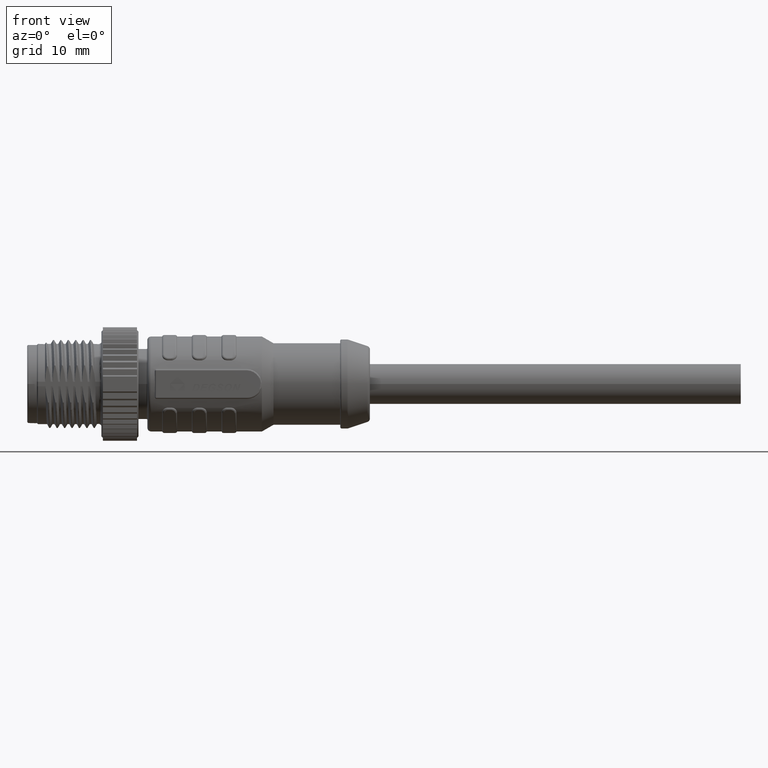
[diagram: clean part render]
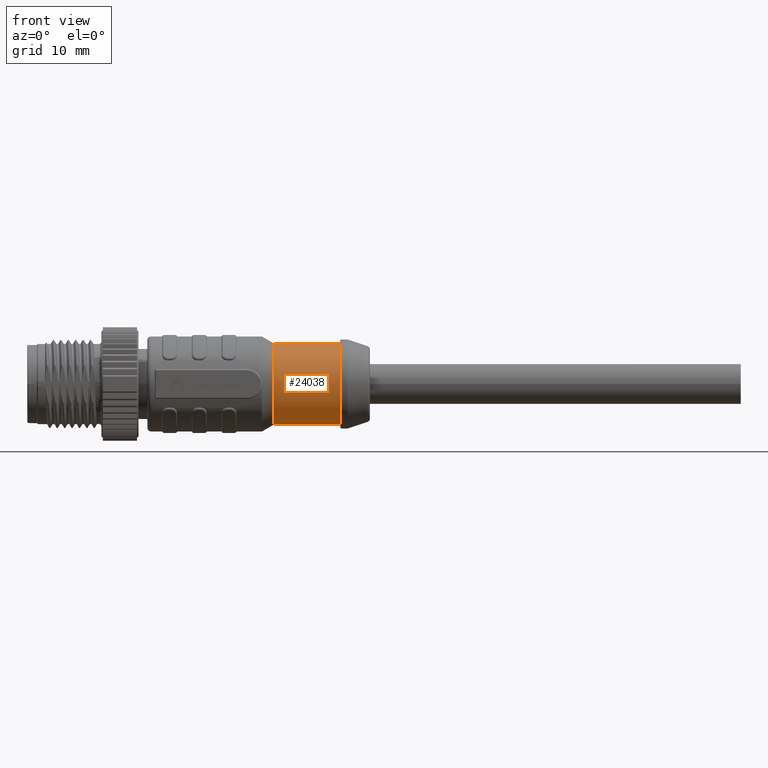
[diagram: same view with one face highlighted and labeled with its STEP entity id]
A machine part, front view. The second image highlights one B-rep face of the part: STEP entity #24038.
In plain terms, the highlighted cylindrical surface (partial cylindrical patch) has radius 5.5 mm, axis along (-1, 0, 0).
Its self-contained STEP definition (entity closure, byte-faithful):
#652=CARTESIAN_POINT('',(3.12E1,0.E0,0.E0));
#653=DIRECTION('',(1.E0,0.E0,0.E0));
#654=DIRECTION('',(0.E0,0.E0,1.E0));
#655=AXIS2_PLACEMENT_3D('',#652,#653,#654);
#6851=DIRECTION('',(-1.E0,0.E0,-9.602195581869E-14));
#6852=VECTOR('',#6851,9.E0);
#6853=CARTESIAN_POINT('',(4.02E1,0.E0,5.5E0));
#6854=LINE('',#6853,#6852);
#6855=DIRECTION('',(-1.E0,0.E0,9.602195581869E-14));
#6856=VECTOR('',#6855,9.E0);
#6857=CARTESIAN_POINT('',(4.02E1,0.E0,-5.5E0));
#6858=LINE('',#6857,#6856);
#6869=CARTESIAN_POINT('',(4.02E1,0.E0,0.E0));
#6870=DIRECTION('',(-1.E0,0.E0,0.E0));
#6871=DIRECTION('',(0.E0,0.E0,-1.E0));
#6872=AXIS2_PLACEMENT_3D('',#6869,#6870,#6871);
#10615=CARTESIAN_POINT('',(3.12E1,0.E0,5.499999999999E0));
#10616=VERTEX_POINT('',#10615);
#10617=CARTESIAN_POINT('',(3.12E1,0.E0,-5.499999999998E0));
#10618=VERTEX_POINT('',#10617);
#11884=CARTESIAN_POINT('',(4.02E1,0.E0,-5.5E0));
#11885=VERTEX_POINT('',#11884);
#11886=CARTESIAN_POINT('',(4.02E1,0.E0,5.5E0));
#11887=VERTEX_POINT('',#11886);
#24026=CARTESIAN_POINT('',(4.57E1,0.E0,0.E0));
#24027=DIRECTION('',(-1.E0,0.E0,0.E0));
#24028=DIRECTION('',(0.E0,0.E0,1.E0));
#24029=AXIS2_PLACEMENT_3D('',#24026,#24027,#24028);
#24030=CYLINDRICAL_SURFACE('',#24029,5.5E0);
#24031=ORIENTED_EDGE('',*,*,#24016,.T.);
#24032=ORIENTED_EDGE('',*,*,#13334,.F.);
#24033=ORIENTED_EDGE('',*,*,#24020,.F.);
#24035=ORIENTED_EDGE('',*,*,#24034,.F.);
#24036=EDGE_LOOP('',(#24031,#24032,#24033,#24035));
#24037=FACE_OUTER_BOUND('',#24036,.F.);
#24038=ADVANCED_FACE('',(#24037),#24030,.T.);
#656=CIRCLE('',#655,5.499999999998E0);
#6873=CIRCLE('',#6872,5.5E0);
#13334=EDGE_CURVE('',#10616,#10618,#656,.T.);
#24016=EDGE_CURVE('',#11885,#10618,#6858,.T.);
#24020=EDGE_CURVE('',#11887,#10616,#6854,.T.);
#24034=EDGE_CURVE('',#11885,#11887,#6873,.T.);